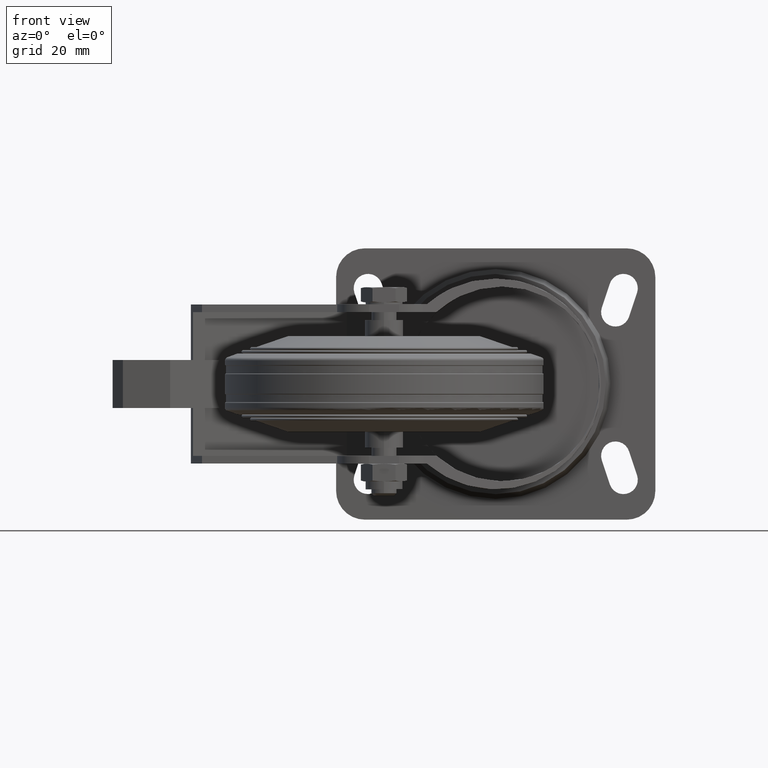
[diagram: clean part render]
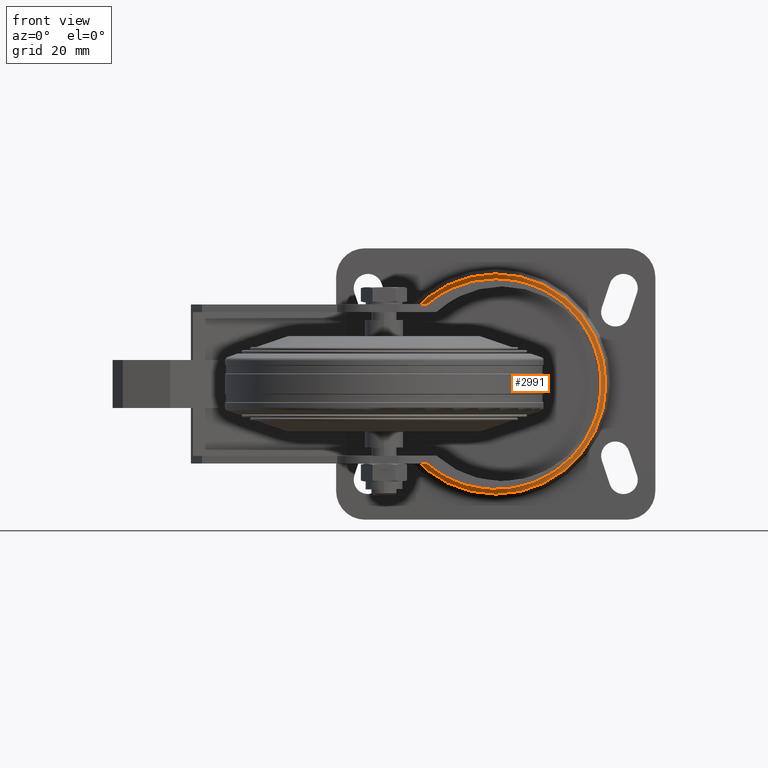
[diagram: same view with one face highlighted and labeled with its STEP entity id]
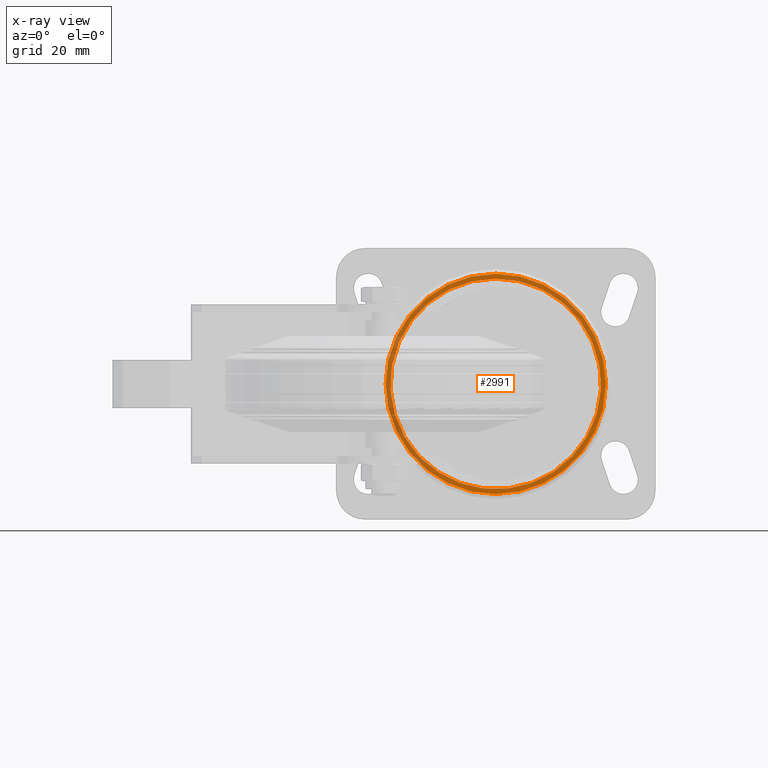
[diagram: x-ray of the same camera — body ghosted, the highlighted face saturated]
A machine part, front view. The second image highlights one B-rep face of the part: STEP entity #2991.
The next image is the same camera in x-ray: the body ghosted, the highlighted face saturated — about 22% of this face is hidden behind the body in this view.
In plain terms, the highlighted planar face has unit normal (0, 1, 0).
Its self-contained STEP definition (entity closure, byte-faithful):
#133=FACE_BOUND('',#983,.T.);
#197=PLANE('',#3404);
#772=FACE_OUTER_BOUND('',#982,.T.);
#982=EDGE_LOOP('',(#2512));
#983=EDGE_LOOP('',(#2513));
#1120=CIRCLE('',#3294,33.);
#1180=CIRCLE('',#3403,34.501220663978);
#1397=VERTEX_POINT('',#4915);
#1474=VERTEX_POINT('',#5160);
#1721=EDGE_CURVE('',#1397,#1397,#1120,.F.);
#1840=EDGE_CURVE('',#1474,#1474,#1180,.T.);
#2512=ORIENTED_EDGE('',*,*,#1840,.T.);
#2513=ORIENTED_EDGE('',*,*,#1721,.F.);
#2991=ADVANCED_FACE('',(#772,#133),#197,.F.);
#3294=AXIS2_PLACEMENT_3D('',#4917,#3845,#3846);
#3403=AXIS2_PLACEMENT_3D('',#5162,#4122,#4123);
#3404=AXIS2_PLACEMENT_3D('',#5163,#4124,#4125);
#3845=DIRECTION('center_axis',(0.,1.,0.));
#3846=DIRECTION('ref_axis',(0.,0.,1.));
#4122=DIRECTION('center_axis',(0.,-1.,0.));
#4123=DIRECTION('ref_axis',(0.,0.,-1.));
#4124=DIRECTION('center_axis',(0.,1.,0.));
#4125=DIRECTION('ref_axis',(0.,0.,1.));
#4915=CARTESIAN_POINT('',(35.,66.2,33.));
#4917=CARTESIAN_POINT('Origin',(35.,66.2,0.));
#5160=CARTESIAN_POINT('',(35.,66.2,-34.501220663978));
#5162=CARTESIAN_POINT('Origin',(35.,66.2,0.));
#5163=CARTESIAN_POINT('Origin',(69.501220663978,66.2,0.));